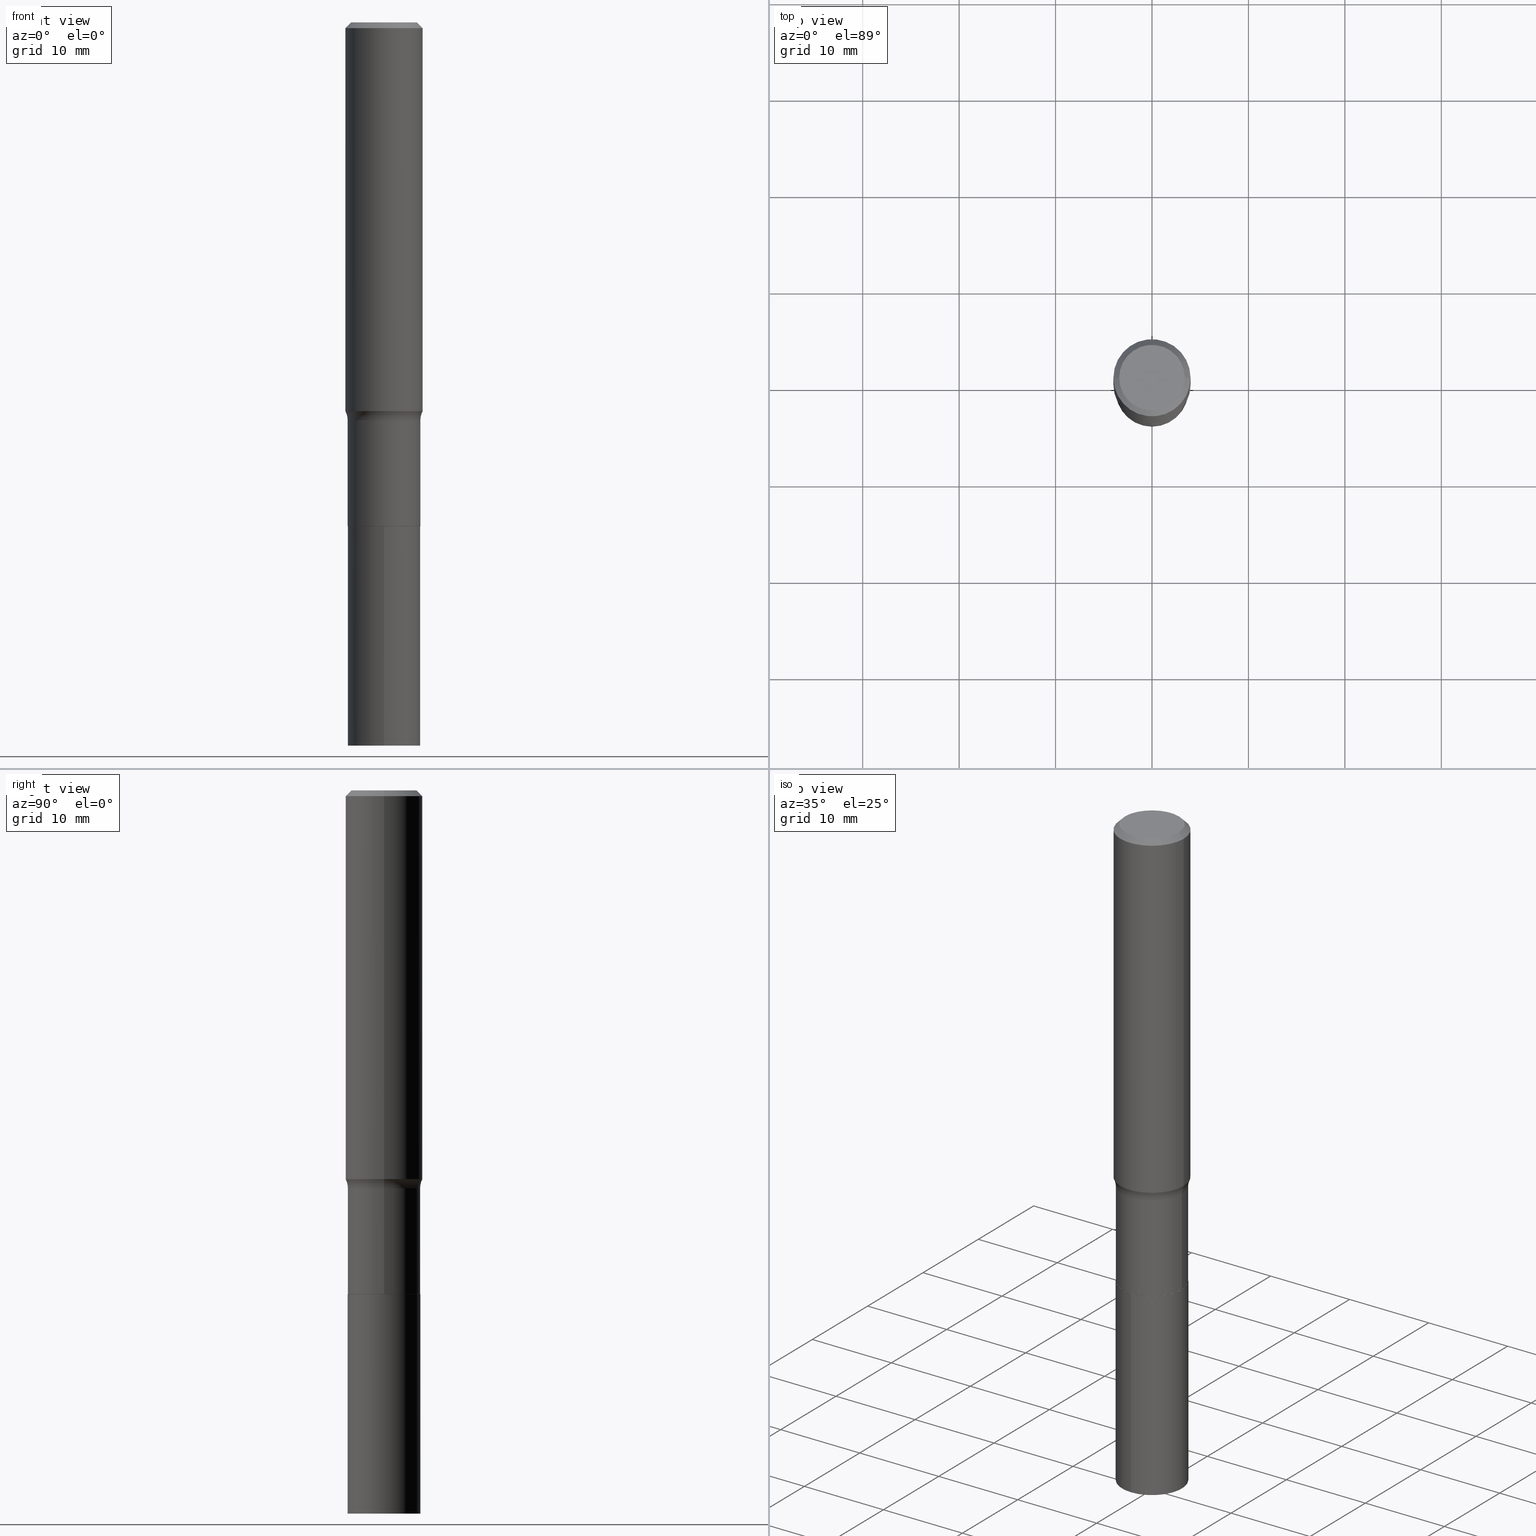
[diagram: canonical four-view strip — front | top / right | iso, engineering-drawing reading convention]
A machine part, canonical four-view strip (front | top / right | iso — engineering-drawing reading convention). The complete STEP part file that produces these views, byte-faithful:
ISO-10303-21;
HEADER;
FILE_DESCRIPTION (( 'STEP AP203' ),
    '1' );
FILE_NAME ('58828.STEP',
    '2024-04-19T14:43:55',
    ( '' ),
    ( '' ),
    'SwSTEP 2.0',
    'SolidWorks 2023',
    '' );
FILE_SCHEMA (( 'CONFIG_CONTROL_DESIGN' ));
ENDSEC;

DATA;
#1 = CALENDAR_DATE ( 2024, 19, 4 ) ;
#2 = CARTESIAN_POINT ( 'NONE',  ( 1.054800691235940897E-15, 0.1484499999999928099, -2.056800000000000406 ) ) ;
#3 = CONICAL_SURFACE ( 'NONE', #241, 0.1575000000000000011, 0.7853981633974447263 ) ;
#4 = CC_DESIGN_APPROVAL ( #251, ( #384 ) ) ;
#5 = CARTESIAN_POINT ( 'NONE',  ( 5.029840240561588648E-29, -7.181278817732581070E-15, -2.056799999999999962 ) ) ;
#6 = EDGE_CURVE ( 'NONE', #150, #395, #160, .T. ) ;
#7 = MANIFOLD_SOLID_BREP ( 'Body-Move/Copy2[2]', #87 ) ;
#8 = ADVANCED_FACE ( 'NONE', ( #331 ), #3, .T. ) ;
#9 = CC_DESIGN_PERSON_AND_ORGANIZATION_ASSIGNMENT ( #467, #151, ( #140 ) ) ;
#10 = CONICAL_SURFACE ( 'NONE', #195, 0.1575000000000000011, 0.7853981633974447263 ) ;
#11 = AXIS2_PLACEMENT_3D ( 'NONE', #5, #435, #82 ) ;
#12 = CARTESIAN_POINT ( 'NONE',  ( 7.221015963033956989E-29, -1.030959501281485395E-14, -2.952800000000000313 ) ) ;
#13 = DIRECTION ( 'NONE',  ( -6.982962677686265922E-15, -1.000000000000000000, 3.491424324868607182E-15 ) ) ;
#14 = ORIENTED_EDGE ( 'NONE', *, *, #148, .T. ) ;
#15 = CARTESIAN_POINT ( 'NONE',  ( 5.029840240561588648E-29, -7.181278817732581070E-15, -2.056799999999999962 ) ) ;
#16 = MANIFOLD_SOLID_BREP ( 'Body-Move/Copy2[1]', #233 ) ;
#17 = EDGE_CURVE ( 'NONE', #18, #180, #223, .T. ) ;
#18 = VERTEX_POINT ( 'NONE', #452 ) ;
#19 = FACE_OUTER_BOUND ( 'NONE', #56, .T. ) ;
#20 = AXIS2_PLACEMENT_3D ( 'NONE', #152, #405, #80 ) ;
#21 = AXIS2_PLACEMENT_3D ( 'NONE', #234, #277, #204 ) ;
#22 = ORIENTED_EDGE ( 'NONE', *, *, #409, .T. ) ;
#23 = ADVANCED_FACE ( 'NONE', ( #209 ), #10, .T. ) ;
#24 = VERTEX_POINT ( 'NONE', #457 ) ;
#25 = CARTESIAN_POINT ( 'NONE',  ( -0.2284499999999999309, -4.047978258838972146E-15, -1.624299999999999633 ) ) ;
#26 = FACE_OUTER_BOUND ( 'NONE', #462, .T. ) ;
#27 = ADVANCED_FACE ( 'NONE', ( #348 ), #287, .T. ) ;
#28 = PRODUCT_DEFINITION_SHAPE ( 'NONE', 'NONE',  #170 ) ;
#29 = ORIENTED_EDGE ( 'NONE', *, *, #229, .T. ) ;
#30 = EDGE_CURVE ( 'NONE', #256, #24, #48, .T. ) ;
#31 = CARTESIAN_POINT ( 'NONE',  ( 7.221015963033956989E-29, -1.030959501281485395E-14, -2.952800000000000313 ) ) ;
#32 = DIRECTION ( 'NONE',  ( 1.000000000000000000, -6.982962677686267499E-15, 4.876176775795936353E-29 ) ) ;
#33 = DIRECTION ( 'NONE',  ( -0.7071067811866078578, 7.493145998870571886E-15, 0.7071067811864871766 ) ) ;
#34 = AXIS2_PLACEMENT_3D ( 'NONE', #272, #86, #52 ) ;
#35 = VECTOR ( 'NONE', #352, 39.37007874015748143 ) ;
#36 = CARTESIAN_POINT ( 'NONE',  ( 5.029840240561588648E-29, -7.181278817732581070E-15, -2.056799999999999962 ) ) ;
#37 = CARTESIAN_POINT ( 'NONE',  ( 5.029840240561588648E-29, -7.181278817732581070E-15, -2.056799999999999962 ) ) ;
#38 = ORIENTED_EDGE ( 'NONE', *, *, #129, .T. ) ;
#39 = PERSON_AND_ORGANIZATION ( #159, #49 ) ;
#40 = CIRCLE ( 'NONE', #70, 0.1479499999999999982 ) ;
#41 = EDGE_LOOP ( 'NONE', ( #447, #347 ) ) ;
#42 = APPROVAL_ROLE ( '' ) ;
#43 = EDGE_CURVE ( 'NONE', #150, #18, #98, .T. ) ;
#44 = CALENDAR_DATE ( 2024, 19, 4 ) ;
#45 = DATE_TIME_ROLE ( 'classification_date' ) ;
#46 = AXIS2_PLACEMENT_3D ( 'NONE', #428, #213, #355 ) ;
#47 = DIRECTION ( 'NONE',  ( -2.445468806185136597E-29, 3.491481338843145583E-15, 1.000000000000000000 ) ) ;
#48 = CIRCLE ( 'NONE', #315, 0.1479499999999999982 ) ;
#49 = ORGANIZATION ( 'UNSPECIFIED', 'UNSPECIFIED', '' ) ;
#50 = AXIS2_PLACEMENT_3D ( 'NONE', #115, #215, #414 ) ;
#51 = EDGE_CURVE ( 'NONE', #133, #76, #303, .T. ) ;
#52 = DIRECTION ( 'NONE',  ( 1.000000000000000000, -6.982962677686264344E-15, 0.000000000000000000 ) ) ;
#53 = EDGE_CURVE ( 'NONE', #76, #133, #254, .T. ) ;
#54 = DIRECTION ( 'NONE',  ( -2.445508618830767481E-29, 3.491424324868607182E-15, 1.000000000000000000 ) ) ;
#55 = EDGE_LOOP ( 'NONE', ( #59, #130, #14, #417 ) ) ;
#56 = EDGE_LOOP ( 'NONE', ( #65, #311, #275, #163 ) ) ;
#57 = CARTESIAN_POINT ( 'NONE',  ( -0.1575000000000001954, -4.423060539265832036E-15, -1.587339243784791742 ) ) ;
#58 = CIRCLE ( 'NONE', #89, 0.1484499999999999986 ) ;
#59 = ORIENTED_EDGE ( 'NONE', *, *, #292, .F. ) ;
#60 = UNCERTAINTY_MEASURE_WITH_UNIT (LENGTH_MEASURE( 1.000000000000000082E-05 ), #375, 'distance_accuracy_value', 'NONE');
#61 = FACE_OUTER_BOUND ( 'NONE', #415, .T. ) ;
#62 = DIRECTION ( 'NONE',  ( -2.445468806185136597E-29, 3.491481338843145583E-15, 1.000000000000000000 ) ) ;
#63 = CARTESIAN_POINT ( 'NONE',  ( 0.1479499999999999982, -8.214408145896263959E-15, -2.056799999999999962 ) ) ;
#64 = CC_DESIGN_DATE_AND_TIME_ASSIGNMENT ( #368, #45, ( #140 ) ) ;
#65 = ORIENTED_EDGE ( 'NONE', *, *, #30, .T. ) ;
#66 = CARTESIAN_POINT ( 'NONE',  ( 5.029840240561588648E-29, -7.181278817732581070E-15, -2.056799999999999962 ) ) ;
#67 = CARTESIAN_POINT ( 'NONE',  ( 0.000000000000000000, 0.000000000000000000, 0.000000000000000000 ) ) ;
#68 = DIRECTION ( 'NONE',  ( 2.445468806185136597E-29, -3.491481338843145583E-15, -1.000000000000000000 ) ) ;
#69 = VECTOR ( 'NONE', #227, 39.37007874015748143 ) ;
#70 = AXIS2_PLACEMENT_3D ( 'NONE', #456, #183, #423 ) ;
#71 = ORIENTED_EDGE ( 'NONE', *, *, #337, .T. ) ;
#72 = DIRECTION ( 'NONE',  ( -2.445508618830767481E-29, 3.491424324868607182E-15, 1.000000000000000000 ) ) ;
#73 = ADVANCED_FACE ( 'NONE', ( #26 ), #278, .T. ) ;
#74 = FACE_OUTER_BOUND ( 'NONE', #247, .T. ) ;
#75 = CALENDAR_DATE ( 2024, 19, 4 ) ;
#76 = VERTEX_POINT ( 'NONE', #419 ) ;
#77 = CARTESIAN_POINT ( 'NONE',  ( 5.777420054612423732E-31, -8.248624663016986467E-17, -0.02362500000000015976 ) ) ;
#78 = AXIS2_PLACEMENT_3D ( 'NONE', #418, #307, #168 ) ;
#79 = DATE_AND_TIME ( #75, #284 ) ;
#80 = DIRECTION ( 'NONE',  ( 1.000000000000000000, -6.982962677686266711E-15, 4.876170806578254279E-29 ) ) ;
#81 = COORDINATED_UNIVERSAL_TIME_OFFSET ( 5, 0, .BEHIND. ) ;
#82 = DIRECTION ( 'NONE',  ( 1.000000000000000000, -6.982962677686265133E-15, 0.000000000000000000 ) ) ;
#83 = AXIS2_PLACEMENT_3D ( 'NONE', #387, #62, #102 ) ;
#84 = VECTOR ( 'NONE', #178, 39.37007874015748143 ) ;
#85 = CARTESIAN_POINT ( 'NONE',  ( 5.777420054612423732E-31, -8.248624663016986467E-17, -0.02362500000000015976 ) ) ;
#86 = DIRECTION ( 'NONE',  ( -2.445468806185136597E-29, 3.491481338843145583E-15, 1.000000000000000000 ) ) ;
#87 = CLOSED_SHELL ( 'NONE', ( #214, #23, #73, #220, #27, #273, #125, #90, #8, #309, #339, #335 ) ) ;
#88 = LINE ( 'NONE', #338, #269 ) ;
#89 = AXIS2_PLACEMENT_3D ( 'NONE', #37, #320, #458 ) ;
#90 = ADVANCED_FACE ( 'NONE', ( #244 ), #283, .T. ) ;
#91 = ORIENTED_EDGE ( 'NONE', *, *, #51, .T. ) ;
#92 = ORIENTED_EDGE ( 'NONE', *, *, #322, .T. ) ;
#93 = CARTESIAN_POINT ( 'NONE',  ( 0.1575000000000001954, -6.641981969823579487E-15, -1.587339243784791742 ) ) ;
#94 = DIRECTION ( 'NONE',  ( -2.445468806185136877E-29, 3.491481338843145188E-15, 1.000000000000000000 ) ) ;
#95 = ORIENTED_EDGE ( 'NONE', *, *, #43, .T. ) ;
#96 = EDGE_CURVE ( 'NONE', #340, #165, #127, .T. ) ;
#97 = VERTEX_POINT ( 'NONE', #174 ) ;
#98 = LINE ( 'NONE', #468, #69 ) ;
#99 = DIRECTION ( 'NONE',  ( 0.7071067811866078578, -2.468850131082888544E-15, 0.7071067811864871766 ) ) ;
#100 = AXIS2_PLACEMENT_3D ( 'NONE', #344, #264, #291 ) ;
#101 = ORIENTED_EDGE ( 'NONE', *, *, #51, .F. ) ;
#102 = DIRECTION ( 'NONE',  ( 1.000000000000000000, -6.982962677686262766E-15, 0.000000000000000000 ) ) ;
#103 = VERTEX_POINT ( 'NONE', #421 ) ;
#104 = FACE_OUTER_BOUND ( 'NONE', #118, .T. ) ;
#105 = LINE ( 'NONE', #113, #84 ) ;
#106 = DIRECTION ( 'NONE',  ( 1.000000000000000000, -6.982962677686265133E-15, 0.000000000000000000 ) ) ;
#107 = FACE_OUTER_BOUND ( 'NONE', #346, .T. ) ;
#108 = AXIS2_PLACEMENT_3D ( 'NONE', #406, #157, #297 ) ;
#109 = CALENDAR_DATE ( 2024, 19, 4 ) ;
#110 = AXIS2_PLACEMENT_3D ( 'NONE', #260, #253, #321 ) ;
#111 = ORIENTED_EDGE ( 'NONE', *, *, #129, .F. ) ;
#112 = EDGE_CURVE ( 'NONE', #395, #180, #250, .T. ) ;
#113 = CARTESIAN_POINT ( 'NONE',  ( 0.1575000000000000011, -1.163014681279186162E-15, -0.02362500000000015976 ) ) ;
#114 = APPROVAL_DATE_TIME ( #432, #194 ) ;
#115 = CARTESIAN_POINT ( 'NONE',  ( 0.000000000000000000, 0.000000000000000000, 0.000000000000000000 ) ) ;
#116 = PERSON_AND_ORGANIZATION ( #159, #49 ) ;
#117 = CC_DESIGN_PERSON_AND_ORGANIZATION_ASSIGNMENT ( #359, #120, ( #384 ) ) ;
#118 = EDGE_LOOP ( 'NONE', ( #218, #445, #323, #38 ) ) ;
#119 = APPROVAL_PERSON_ORGANIZATION ( #429, #149, #329 ) ;
#120 = PERSON_AND_ORGANIZATION_ROLE ( 'creator' ) ;
#121 = AXIS2_PLACEMENT_3D ( 'NONE', #246, #162, #388 ) ;
#122 = CC_DESIGN_PERSON_AND_ORGANIZATION_ASSIGNMENT ( #39, #461, ( #170 ) ) ;
#123 = CC_DESIGN_APPROVAL ( #149, ( #170 ) ) ;
#124 = CARTESIAN_POINT ( 'NONE',  ( 0.1484499999999999431, -1.036620809502525896E-15, 7.238684423669065009E-30 ) ) ;
#125 = ADVANCED_FACE ( 'NONE', ( #104 ), #396, .F. ) ;
#126 = DIRECTION ( 'NONE',  ( -2.445468806185136597E-29, 3.491481338843145583E-15, 1.000000000000000000 ) ) ;
#127 = CIRCLE ( 'NONE', #83, 0.1484499999999999709 ) ;
#128 = AXIS2_PLACEMENT_3D ( 'NONE', #398, #72, #265 ) ;
#129 = EDGE_CURVE ( 'NONE', #97, #103, #230, .T. ) ;
#130 = ORIENTED_EDGE ( 'NONE', *, *, #53, .F. ) ;
#131 = CARTESIAN_POINT ( 'NONE',  ( 0.2284499999999999309, -7.266470962400347289E-15, -1.624299999999999633 ) ) ;
#132 = APPLICATION_CONTEXT ( 'configuration controlled 3d designs of mechanical parts and assemblies' ) ;
#133 = VERTEX_POINT ( 'NONE', #371 ) ;
#134 = CYLINDRICAL_SURFACE ( 'NONE', #21, 0.1484499999999999986 ) ;
#135 = DIRECTION ( 'NONE',  ( 1.000000000000000000, -6.982962677686266711E-15, 4.876170806578254279E-29 ) ) ;
#136 = CARTESIAN_POINT ( 'NONE',  ( 0.1479499999999999982, -8.214408145896263959E-15, -2.056799999999999962 ) ) ;
#137 = ADVANCED_BREP_SHAPE_REPRESENTATION ( '58828', ( #16, #7, #50 ), #196 ) ;
#138 = CARTESIAN_POINT ( 'NONE',  ( 0.000000000000000000, 0.000000000000000000, 0.000000000000000000 ) ) ;
#139 = AXIS2_PLACEMENT_3D ( 'NONE', #313, #308, #318 ) ;
#140 = SECURITY_CLASSIFICATION ( '', '', #228 ) ;
#141 = VERTEX_POINT ( 'NONE', #2 ) ;
#142 = DIRECTION ( 'NONE',  ( 2.445468806185136597E-29, -3.491481338843145583E-15, -1.000000000000000000 ) ) ;
#143 = APPROVAL_STATUS ( 'not_yet_approved' ) ;
#144 = EDGE_CURVE ( 'NONE', #383, #440, #443, .T. ) ;
#145 = ORIENTED_EDGE ( 'NONE', *, *, #279, .T. ) ;
#146 = TOROIDAL_SURFACE ( 'NONE', #342, 0.2284499999999999309, 0.07999999999999996003 ) ;
#147 = PERSON_AND_ORGANIZATION ( #159, #49 ) ;
#148 = EDGE_CURVE ( 'NONE', #76, #18, #438, .T. ) ;
#149 = APPROVAL ( #399, 'UNSPECIFIED' ) ;
#150 = VERTEX_POINT ( 'NONE', #57 ) ;
#151 = PERSON_AND_ORGANIZATION_ROLE ( 'classification_officer' ) ;
#152 = CARTESIAN_POINT ( 'NONE',  ( -1.002970424325032604E-46, 1.431975951230895391E-32, 4.101342130344482109E-18 ) ) ;
#153 = DATE_AND_TIME ( #1, #370 ) ;
#154 = DIRECTION ( 'NONE',  ( -2.445508618830767481E-29, 3.491424324868607182E-15, 1.000000000000000000 ) ) ;
#155 = AXIS2_PLACEMENT_3D ( 'NONE', #341, #126, #237 ) ;
#156 = AXIS2_PLACEMENT_3D ( 'NONE', #411, #236, #212 ) ;
#157 = DIRECTION ( 'NONE',  ( -2.445468806185136597E-29, 3.491481338843145583E-15, 1.000000000000000000 ) ) ;
#158 = APPLICATION_CONTEXT ( 'configuration controlled 3d designs of mechanical parts and assemblies' ) ;
#159 = PERSON ( 'UNSPECIFIED', 'UNSPECIFIED', 'UNSPECIFIED', ('UNSPECIFIED'), ('UNSPECIFIED'), ('UNSPECIFIED') ) ;
#160 = CIRCLE ( 'NONE', #46, 0.1575000000000001954 ) ;
#161 = EDGE_CURVE ( 'NONE', #383, #306, #202, .T. ) ;
#162 = DIRECTION ( 'NONE',  ( -2.445468806185136597E-29, 3.491481338843145583E-15, 1.000000000000000000 ) ) ;
#163 = ORIENTED_EDGE ( 'NONE', *, *, #229, .F. ) ;
#164 = CARTESIAN_POINT ( 'NONE',  ( -1.036620809502475803E-15, -0.1484500000000071873, -2.056799999999999073 ) ) ;
#165 = VERTEX_POINT ( 'NONE', #235 ) ;
#166 = ORIENTED_EDGE ( 'NONE', *, *, #362, .T. ) ;
#167 = EDGE_LOOP ( 'NONE', ( #211, #145, #29, #453 ) ) ;
#168 = DIRECTION ( 'NONE',  ( 6.982962677686265922E-15, 1.000000000000000000, -3.491424324868607182E-15 ) ) ;
#169 = DIRECTION ( 'NONE',  ( -1.000000000000000000, 6.982962677686265922E-15, 0.000000000000000000 ) ) ;
#170 = PRODUCT_DEFINITION ( 'UNKNOWN', '', #384, #172 ) ;
#171 = ORIENTED_EDGE ( 'NONE', *, *, #161, .T. ) ;
#172 = DESIGN_CONTEXT ( 'detailed design', #158, 'design' ) ;
#173 = DIRECTION ( 'NONE',  ( -2.445508618830767481E-29, 3.491424324868607182E-15, 1.000000000000000000 ) ) ;
#174 = CARTESIAN_POINT ( 'NONE',  ( 0.1484499999999999431, -6.707833948185445637E-15, -1.624299999999999633 ) ) ;
#175 = DIRECTION ( 'NONE',  ( -2.445508618830767481E-29, 3.491424324868607182E-15, 1.000000000000000000 ) ) ;
#176 = DIRECTION ( 'NONE',  ( -2.445468806185136597E-29, 3.491481338843145583E-15, 1.000000000000000000 ) ) ;
#177 = AXIS2_PLACEMENT_3D ( 'NONE', #12, #154, #381 ) ;
#178 = DIRECTION ( 'NONE',  ( 0.7071067811865450192, -7.319954787623246579E-15, -0.7071067811865500152 ) ) ;
#179 = APPROVAL_PERSON_ORGANIZATION ( #116, #251, #219 ) ;
#180 = VERTEX_POINT ( 'NONE', #199 ) ;
#181 = DIRECTION ( 'NONE',  ( 1.000000000000000000, -6.982962677686267499E-15, 4.876176775795936353E-29 ) ) ;
#182 = LINE ( 'NONE', #222, #294 ) ;
#183 = DIRECTION ( 'NONE',  ( -2.445468806185136597E-29, 3.491481338843145583E-15, 1.000000000000000000 ) ) ;
#184 = LOCAL_TIME ( 10, 43, 55.00000000000000000, #365 ) ;
#185 = ORIENTED_EDGE ( 'NONE', *, *, #43, .F. ) ;
#186 = ORIENTED_EDGE ( 'NONE', *, *, #148, .F. ) ;
#187 = CARTESIAN_POINT ( 'NONE',  ( 5.777420054612423732E-31, -8.248624663016986467E-17, -0.02362500000000015976 ) ) ;
#188 = DATE_AND_TIME ( #44, #444 ) ;
#189 = FACE_OUTER_BOUND ( 'NONE', #167, .T. ) ;
#190 = APPLICATION_PROTOCOL_DEFINITION ( 'international standard', 'config_control_design', 1994, #158 ) ;
#191 = AXIS2_PLACEMENT_3D ( 'NONE', #394, #436, #268 ) ;
#192 = EDGE_CURVE ( 'NONE', #165, #97, #274, .T. ) ;
#193 = EDGE_CURVE ( 'NONE', #103, #97, #430, .T. ) ;
#194 = APPROVAL ( #143, 'UNSPECIFIED' ) ;
#195 = AXIS2_PLACEMENT_3D ( 'NONE', #187, #68, #366 ) ;
#196 =( GEOMETRIC_REPRESENTATION_CONTEXT ( 3 ) GLOBAL_UNCERTAINTY_ASSIGNED_CONTEXT ( ( #60 ) ) GLOBAL_UNIT_ASSIGNED_CONTEXT ( ( #375, #312, #451 ) ) REPRESENTATION_CONTEXT ( 'NONE', 'WORKASPACE' ) );
#197 = CARTESIAN_POINT ( 'NONE',  ( -3.679415026690334004E-30, -2.117741404033615530E-14, -2.952800000000000313 ) ) ;
#198 = DIRECTION ( 'NONE',  ( -6.982962677686265133E-15, -1.000000000000000000, 3.680495781292372402E-15 ) ) ;
#199 = CARTESIAN_POINT ( 'NONE',  ( 0.1575000000000000011, -1.182302868365756877E-15, -0.02362500000000015976 ) ) ;
#200 = ORIENTED_EDGE ( 'NONE', *, *, #372, .T. ) ;
#201 = CARTESIAN_POINT ( 'NONE',  ( -1.036620809502453912E-15, -0.1484500000000102959, -2.952799999999999869 ) ) ;
#202 = LINE ( 'NONE', #164, #281 ) ;
#203 = CIRCLE ( 'NONE', #121, 0.1575000000000001954 ) ;
#204 = DIRECTION ( 'NONE',  ( -6.982962677686265133E-15, -1.000000000000000000, 3.680495781292372402E-15 ) ) ;
#205 = AXIS2_PLACEMENT_3D ( 'NONE', #31, #173, #380 ) ;
#206 = FACE_OUTER_BOUND ( 'NONE', #285, .T. ) ;
#207 = ORIENTED_EDGE ( 'NONE', *, *, #30, .F. ) ;
#208 = LENGTH_MEASURE_WITH_UNIT ( LENGTH_MEASURE( 0.02539999999999999897 ), #243 );
#209 = FACE_OUTER_BOUND ( 'NONE', #460, .T. ) ;
#210 = FACE_OUTER_BOUND ( 'NONE', #41, .T. ) ;
#211 = ORIENTED_EDGE ( 'NONE', *, *, #300, .F. ) ;
#212 = DIRECTION ( 'NONE',  ( 1.000000000000000000, -6.982962677686262766E-15, 0.000000000000000000 ) ) ;
#213 = DIRECTION ( 'NONE',  ( -2.445468806185136597E-29, 3.491481338843145583E-15, 1.000000000000000000 ) ) ;
#214 = ADVANCED_FACE ( 'NONE', ( #19 ), #293, .T. ) ;
#215 = DIRECTION ( 'NONE',  ( 0.000000000000000000, 0.000000000000000000, 1.000000000000000000 ) ) ;
#216 = ORIENTED_EDGE ( 'NONE', *, *, #53, .T. ) ;
#217 = DIRECTION ( 'NONE',  ( -2.445468806185136597E-29, 3.491481338843145583E-15, 1.000000000000000000 ) ) ;
#218 = ORIENTED_EDGE ( 'NONE', *, *, #372, .F. ) ;
#219 = APPROVAL_ROLE ( '' ) ;
#220 = ADVANCED_FACE ( 'NONE', ( #206 ), #146, .F. ) ;
#221 = EDGE_LOOP ( 'NONE', ( #314, #450, #171, #226 ) ) ;
#222 = CARTESIAN_POINT ( 'NONE',  ( -0.1479499999999999982, -6.130030840175512661E-15, -2.056799999999999962 ) ) ;
#223 = CIRCLE ( 'NONE', #100, 0.1575000000000000011 ) ;
#224 = PERSON_AND_ORGANIZATION ( #159, #49 ) ;
#225 = CIRCLE ( 'NONE', #437, 0.1575000000000000011 ) ;
#226 = ORIENTED_EDGE ( 'NONE', *, *, #362, .F. ) ;
#227 = DIRECTION ( 'NONE',  ( -2.445468806185136877E-29, 3.491481338843145188E-15, 1.000000000000000000 ) ) ;
#228 = SECURITY_CLASSIFICATION_LEVEL ( 'unclassified' ) ;
#229 = EDGE_CURVE ( 'NONE', #256, #165, #239, .T. ) ;
#230 = CIRCLE ( 'NONE', #191, 0.1484499999999999431 ) ;
#231 = ORIENTED_EDGE ( 'NONE', *, *, #112, .T. ) ;
#232 = DIRECTION ( 'NONE',  ( 1.000000000000000000, -6.982962677686266711E-15, 4.883557194083112901E-29 ) ) ;
#233 = CLOSED_SHELL ( 'NONE', ( #327, #267, #425, #390 ) ) ;
#234 = CARTESIAN_POINT ( 'NONE',  ( 5.029840240561588648E-29, -7.181278817732581070E-15, -2.056799999999999962 ) ) ;
#235 = CARTESIAN_POINT ( 'NONE',  ( 0.1484499999999999709, -8.216153886565684674E-15, -2.056299999999999795 ) ) ;
#236 = DIRECTION ( 'NONE',  ( -2.445468806185136597E-29, 3.491481338843145583E-15, 1.000000000000000000 ) ) ;
#237 = DIRECTION ( 'NONE',  ( 1.000000000000000000, -6.982962677686265133E-15, 0.000000000000000000 ) ) ;
#238 = DIRECTION ( 'NONE',  ( 1.000000000000000000, -6.982962677686262766E-15, 0.000000000000000000 ) ) ;
#239 = LINE ( 'NONE', #136, #407 ) ;
#240 = ORIENTED_EDGE ( 'NONE', *, *, #296, .T. ) ;
#241 = AXIS2_PLACEMENT_3D ( 'NONE', #77, #142, #169 ) ;
#242 = ORIENTED_EDGE ( 'NONE', *, *, #161, .F. ) ;
#243 =( LENGTH_UNIT ( ) NAMED_UNIT ( * ) SI_UNIT ( $, .METRE. ) );
#244 = FACE_OUTER_BOUND ( 'NONE', #413, .T. ) ;
#245 = AXIS2_PLACEMENT_3D ( 'NONE', #131, #317, #238 ) ;
#246 = CARTESIAN_POINT ( 'NONE',  ( 3.881788605509211766E-29, -5.542165348087991217E-15, -1.587339243784791742 ) ) ;
#247 = EDGE_LOOP ( 'NONE', ( #216, #91 ) ) ;
#248 = EDGE_CURVE ( 'NONE', #395, #150, #203, .T. ) ;
#249 = PLANE ( 'NONE',  #454 ) ;
#250 = LINE ( 'NONE', #286, #324 ) ;
#251 = APPROVAL ( #459, 'UNSPECIFIED' ) ;
#252 = ORIENTED_EDGE ( 'NONE', *, *, #337, .F. ) ;
#253 = DIRECTION ( 'NONE',  ( 2.438088387897960049E-29, -3.491481338843145188E-15, -1.000000000000000000 ) ) ;
#254 = CIRCLE ( 'NONE', #412, 0.1338749999999999940 ) ;
#255 = CARTESIAN_POINT ( 'NONE',  ( -0.1484499999999999431, 1.054800691235868322E-15, -7.302159141483405952E-30 ) ) ;
#256 = VERTEX_POINT ( 'NONE', #63 ) ;
#257 = SHAPE_DEFINITION_REPRESENTATION ( #28, #137 ) ;
#258 = APPLICATION_PROTOCOL_DEFINITION ( 'international standard', 'config_control_design', 1994, #132 ) ;
#259 = CC_DESIGN_PERSON_AND_ORGANIZATION_ASSIGNMENT ( #446, #464, ( #422 ) ) ;
#260 = CARTESIAN_POINT ( 'NONE',  ( -5.014852121625163022E-47, 7.159879756154476955E-33, 2.050671065172241055E-18 ) ) ;
#261 = APPROVAL_DATE_TIME ( #153, #251 ) ;
#262 = APPROVAL_DATE_TIME ( #79, #149 ) ;
#263 = CIRCLE ( 'NONE', #325, 0.1484499999999999986 ) ;
#264 = DIRECTION ( 'NONE',  ( -2.445468806185136597E-29, 3.491481338843145583E-15, 1.000000000000000000 ) ) ;
#265 = DIRECTION ( 'NONE',  ( -6.982962677686265133E-15, -1.000000000000000000, 3.680495781292372402E-15 ) ) ;
#266 = DIMENSIONAL_EXPONENTS ( 1.000000000000000000, 0.000000000000000000, 0.000000000000000000, 0.000000000000000000, 0.000000000000000000, 0.000000000000000000, 0.000000000000000000 ) ;
#267 = ADVANCED_FACE ( 'NONE', ( #210 ), #349, .F. ) ;
#268 = DIRECTION ( 'NONE',  ( 1.000000000000000000, -6.982962677686264344E-15, 0.000000000000000000 ) ) ;
#269 = VECTOR ( 'NONE', #175, 39.37007874015748143 ) ;
#270 = CC_DESIGN_DATE_AND_TIME_ASSIGNMENT ( #188, #433, ( #170 ) ) ;
#271 = DIRECTION ( 'NONE',  ( 1.000000000000000000, -6.982962677686268288E-15, 0.000000000000000000 ) ) ;
#272 = CARTESIAN_POINT ( 'NONE',  ( 3.972174981886516039E-29, -5.671213138682920530E-15, -1.624299999999999633 ) ) ;
#273 = ADVANCED_FACE ( 'NONE', ( #301 ), #439, .T. ) ;
#274 = LINE ( 'NONE', #124, #369 ) ;
#275 = ORIENTED_EDGE ( 'NONE', *, *, #378, .F. ) ;
#276 = ORIENTED_EDGE ( 'NONE', *, *, #17, .F. ) ;
#277 = DIRECTION ( 'NONE',  ( -2.445508618830767481E-29, 3.491424324868607182E-15, 1.000000000000000000 ) ) ;
#278 = CYLINDRICAL_SURFACE ( 'NONE', #373, 0.1575000000000000844 ) ;
#279 = EDGE_CURVE ( 'NONE', #24, #256, #40, .T. ) ;
#280 = ORIENTED_EDGE ( 'NONE', *, *, #292, .T. ) ;
#281 = VECTOR ( 'NONE', #442, 39.37007874015748143 ) ;
#282 = DIRECTION ( 'NONE',  ( 1.000000000000000000, -6.982962677686265922E-15, 4.876176775795935793E-29 ) ) ;
#283 = CYLINDRICAL_SURFACE ( 'NONE', #333, 0.1575000000000000844 ) ;
#284 = LOCAL_TIME ( 10, 43, 55.00000000000000000, #290 ) ;
#285 = EDGE_LOOP ( 'NONE', ( #326, #200, #350, #328 ) ) ;
#286 = CARTESIAN_POINT ( 'NONE',  ( 0.1575000000000000844, -1.099816621735587677E-15, 7.679978421878603638E-30 ) ) ;
#287 = CYLINDRICAL_SURFACE ( 'NONE', #139, 0.1484499999999999431 ) ;
#288 = CARTESIAN_POINT ( 'NONE',  ( -1.036620809502475803E-15, -0.1484500000000071873, -2.056799999999999073 ) ) ;
#289 = PLANE ( 'NONE',  #110 ) ;
#290 = COORDINATED_UNIVERSAL_TIME_OFFSET ( 5, 0, .BEHIND. ) ;
#291 = DIRECTION ( 'NONE',  ( 1.000000000000000000, -6.982962677686268288E-15, 0.000000000000000000 ) ) ;
#292 = EDGE_CURVE ( 'NONE', #133, #180, #105, .T. ) ;
#293 = CONICAL_SURFACE ( 'NONE', #155, 0.1479499999999999982, 0.7853981633975336552 ) ;
#294 = VECTOR ( 'NONE', #33, 39.37007874015748143 ) ;
#295 = PERSON_AND_ORGANIZATION_ROLE ( 'design_supplier' ) ;
#296 = EDGE_CURVE ( 'NONE', #340, #103, #357, .T. ) ;
#297 = DIRECTION ( 'NONE',  ( 1.000000000000000000, -6.982962677686266711E-15, 4.883557194083112901E-29 ) ) ;
#298 = AXIS2_PLACEMENT_3D ( 'NONE', #392, #427, #361 ) ;
#299 = CC_DESIGN_APPROVAL ( #194, ( #140 ) ) ;
#300 = EDGE_CURVE ( 'NONE', #24, #340, #182, .T. ) ;
#301 = FACE_OUTER_BOUND ( 'NONE', #363, .T. ) ;
#302 = ORIENTED_EDGE ( 'NONE', *, *, #378, .T. ) ;
#303 = CIRCLE ( 'NONE', #20, 0.1338749999999999940 ) ;
#304 = ORIENTED_EDGE ( 'NONE', *, *, #192, .T. ) ;
#305 = PLANE ( 'NONE',  #78 ) ;
#306 = VERTEX_POINT ( 'NONE', #288 ) ;
#307 = DIRECTION ( 'NONE',  ( 2.445508618830767201E-29, -3.491424324868607182E-15, -1.000000000000000000 ) ) ;
#308 = DIRECTION ( 'NONE',  ( -2.445468806185136597E-29, 3.491481338843145583E-15, 1.000000000000000000 ) ) ;
#309 = ADVANCED_FACE ( 'NONE', ( #74 ), #289, .F. ) ;
#310 = DIRECTION ( 'NONE',  ( -0.7071067811865450192, 2.468850131082230634E-15, -0.7071067811865500152 ) ) ;
#311 = ORIENTED_EDGE ( 'NONE', *, *, #300, .T. ) ;
#312 =( NAMED_UNIT ( * ) PLANE_ANGLE_UNIT ( ) SI_UNIT ( $, .RADIAN. ) );
#313 = CARTESIAN_POINT ( 'NONE',  ( 0.000000000000000000, 0.000000000000000000, 0.000000000000000000 ) ) ;
#314 = ORIENTED_EDGE ( 'NONE', *, *, #409, .F. ) ;
#315 = AXIS2_PLACEMENT_3D ( 'NONE', #36, #351, #106 ) ;
#316 = CIRCLE ( 'NONE', #205, 0.1484499999999999986 ) ;
#317 = DIRECTION ( 'NONE',  ( -6.982962677686266711E-15, -1.000000000000000000, 3.491481338843145583E-15 ) ) ;
#318 = DIRECTION ( 'NONE',  ( 1.000000000000000000, -6.982962677686266711E-15, 4.876176775795936353E-29 ) ) ;
#319 = ORIENTED_EDGE ( 'NONE', *, *, #248, .T. ) ;
#320 = DIRECTION ( 'NONE',  ( -2.445508618830767481E-29, 3.491424324868607182E-15, 1.000000000000000000 ) ) ;
#321 = DIRECTION ( 'NONE',  ( -1.000000000000000000, 6.982962677686265922E-15, -4.876176775795935793E-29 ) ) ;
#322 = EDGE_CURVE ( 'NONE', #306, #141, #58, .T. ) ;
#323 = ORIENTED_EDGE ( 'NONE', *, *, #356, .T. ) ;
#324 = VECTOR ( 'NONE', #426, 39.37007874015748143 ) ;
#325 = AXIS2_PLACEMENT_3D ( 'NONE', #15, #54, #198 ) ;
#326 = ORIENTED_EDGE ( 'NONE', *, *, #6, .F. ) ;
#327 = ADVANCED_FACE ( 'NONE', ( #107 ), #401, .T. ) ;
#328 = ORIENTED_EDGE ( 'NONE', *, *, #356, .F. ) ;
#329 = APPROVAL_ROLE ( '' ) ;
#330 = ORIENTED_EDGE ( 'NONE', *, *, #96, .T. ) ;
#331 = FACE_OUTER_BOUND ( 'NONE', #55, .T. ) ;
#332 = COORDINATED_UNIVERSAL_TIME_OFFSET ( 5, 0, .BEHIND. ) ;
#333 = AXIS2_PLACEMENT_3D ( 'NONE', #67, #176, #181 ) ;
#334 = AXIS2_PLACEMENT_3D ( 'NONE', #25, #343, #416 ) ;
#335 = ADVANCED_FACE ( 'NONE', ( #189 ), #463, .T. ) ;
#336 = DIRECTION ( 'NONE',  ( -2.445508618830767201E-29, 3.491424324868607182E-15, 1.000000000000000000 ) ) ;
#337 = EDGE_CURVE ( 'NONE', #180, #18, #225, .T. ) ;
#338 = CARTESIAN_POINT ( 'NONE',  ( 1.054800691235918809E-15, 0.1484499999999928099, -2.056800000000000406 ) ) ;
#339 = ADVANCED_FACE ( 'NONE', ( #420 ), #249, .F. ) ;
#340 = VERTEX_POINT ( 'NONE', #386 ) ;
#341 = CARTESIAN_POINT ( 'NONE',  ( 5.029840240561588648E-29, -7.181278817732581070E-15, -2.056799999999999962 ) ) ;
#342 = AXIS2_PLACEMENT_3D ( 'NONE', #345, #449, #232 ) ;
#343 = DIRECTION ( 'NONE',  ( 7.105427357601001859E-15, 1.000000000000000000, -3.491481338843145583E-15 ) ) ;
#344 = CARTESIAN_POINT ( 'NONE',  ( 5.777420054612423732E-31, -8.248624663016986467E-17, -0.02362500000000015976 ) ) ;
#345 = CARTESIAN_POINT ( 'NONE',  ( 3.972174981886516039E-29, -5.671213138682920530E-15, -1.624299999999999633 ) ) ;
#346 = EDGE_LOOP ( 'NONE', ( #360, #22, #385, #242 ) ) ;
#347 = ORIENTED_EDGE ( 'NONE', *, *, #400, .F. ) ;
#348 = FACE_OUTER_BOUND ( 'NONE', #379, .T. ) ;
#349 = PLANE ( 'NONE',  #382 ) ;
#350 = ORIENTED_EDGE ( 'NONE', *, *, #193, .T. ) ;
#351 = DIRECTION ( 'NONE',  ( -2.445468806185136597E-29, 3.491481338843145583E-15, 1.000000000000000000 ) ) ;
#352 = DIRECTION ( 'NONE',  ( -2.445468806185136877E-29, 3.491481338843145188E-15, 1.000000000000000000 ) ) ;
#353 = MECHANICAL_CONTEXT ( 'NONE', #132, 'mechanical' ) ;
#354 = CIRCLE ( 'NONE', #156, 0.1484499999999999709 ) ;
#355 = DIRECTION ( 'NONE',  ( 1.000000000000000000, -6.982962677686265922E-15, 0.000000000000000000 ) ) ;
#356 = EDGE_CURVE ( 'NONE', #395, #97, #404, .T. ) ;
#357 = LINE ( 'NONE', #255, #35 ) ;
#358 = PRODUCT_RELATED_PRODUCT_CATEGORY ( 'detail', '', ( #422 ) ) ;
#359 = PERSON_AND_ORGANIZATION ( #159, #49 ) ;
#360 = ORIENTED_EDGE ( 'NONE', *, *, #144, .T. ) ;
#361 = DIRECTION ( 'NONE',  ( 1.000000000000000000, -6.982962677686266711E-15, 4.876176775795936353E-29 ) ) ;
#362 = EDGE_CURVE ( 'NONE', #141, #306, #263, .T. ) ;
#363 = EDGE_LOOP ( 'NONE', ( #465, #330, #304, #393 ) ) ;
#364 = CC_DESIGN_SECURITY_CLASSIFICATION ( #140, ( #384 ) ) ;
#365 = COORDINATED_UNIVERSAL_TIME_OFFSET ( 5, 0, .BEHIND. ) ;
#366 = DIRECTION ( 'NONE',  ( -1.000000000000000000, 6.982962677686265922E-15, 0.000000000000000000 ) ) ;
#367 = COORDINATED_UNIVERSAL_TIME_OFFSET ( 5, 0, .BEHIND. ) ;
#368 = DATE_AND_TIME ( #402, #431 ) ;
#369 = VECTOR ( 'NONE', #94, 39.37007874015748143 ) ;
#370 = LOCAL_TIME ( 10, 43, 55.00000000000000000, #332 ) ;
#371 = CARTESIAN_POINT ( 'NONE',  ( 0.1338749999999999940, -1.040731925365424925E-15, 4.101342130351390035E-18 ) ) ;
#372 = EDGE_CURVE ( 'NONE', #150, #103, #374, .T. ) ;
#373 = AXIS2_PLACEMENT_3D ( 'NONE', #138, #391, #32 ) ;
#374 = CIRCLE ( 'NONE', #334, 0.07999999999999996003 ) ;
#375 =( CONVERSION_BASED_UNIT ( 'INCH', #208 ) LENGTH_UNIT ( ) NAMED_UNIT ( #266 ) );
#376 = ORIENTED_EDGE ( 'NONE', *, *, #6, .T. ) ;
#377 = CARTESIAN_POINT ( 'NONE',  ( 1.054800691235929853E-15, 0.1484499999999896735, -2.952800000000000757 ) ) ;
#378 = EDGE_CURVE ( 'NONE', #165, #340, #354, .T. ) ;
#379 = EDGE_LOOP ( 'NONE', ( #302, #240, #111, #424 ) ) ;
#380 = DIRECTION ( 'NONE',  ( -6.982962677686265133E-15, -1.000000000000000000, 3.680495781292372402E-15 ) ) ;
#381 = DIRECTION ( 'NONE',  ( -6.982962677686265133E-15, -1.000000000000000000, 3.680495781292372402E-15 ) ) ;
#382 = AXIS2_PLACEMENT_3D ( 'NONE', #197, #336, #13 ) ;
#383 = VERTEX_POINT ( 'NONE', #201 ) ;
#384 = PRODUCT_DEFINITION_FORMATION_WITH_SPECIFIED_SOURCE ( 'ANY', '', #422, .NOT_KNOWN. ) ;
#385 = ORIENTED_EDGE ( 'NONE', *, *, #322, .F. ) ;
#386 = CARTESIAN_POINT ( 'NONE',  ( -0.1484499999999999986, -5.370572416637170741E-15, -2.056299999999999795 ) ) ;
#387 = CARTESIAN_POINT ( 'NONE',  ( 5.028617506158495847E-29, -7.179533077063158778E-15, -2.056299999999999795 ) ) ;
#388 = DIRECTION ( 'NONE',  ( 1.000000000000000000, -6.982962677686265922E-15, 0.000000000000000000 ) ) ;
#389 = EDGE_LOOP ( 'NONE', ( #207, #403 ) ) ;
#390 = ADVANCED_FACE ( 'NONE', ( #61 ), #305, .F. ) ;
#391 = DIRECTION ( 'NONE',  ( -2.445468806185136597E-29, 3.491481338843145583E-15, 1.000000000000000000 ) ) ;
#392 = CARTESIAN_POINT ( 'NONE',  ( 0.000000000000000000, 0.000000000000000000, 0.000000000000000000 ) ) ;
#393 = ORIENTED_EDGE ( 'NONE', *, *, #193, .F. ) ;
#394 = CARTESIAN_POINT ( 'NONE',  ( 3.972174981886516039E-29, -5.671213138682920530E-15, -1.624299999999999633 ) ) ;
#395 = VERTEX_POINT ( 'NONE', #93 ) ;
#396 = TOROIDAL_SURFACE ( 'NONE', #108, 0.2284499999999999309, 0.07999999999999996003 ) ;
#397 = CC_DESIGN_PERSON_AND_ORGANIZATION_ASSIGNMENT ( #147, #295, ( #384 ) ) ;
#398 = CARTESIAN_POINT ( 'NONE',  ( 5.029840240561588648E-29, -7.181278817732581070E-15, -2.056799999999999962 ) ) ;
#399 = APPROVAL_STATUS ( 'not_yet_approved' ) ;
#400 = EDGE_CURVE ( 'NONE', #440, #383, #316, .T. ) ;
#401 = CYLINDRICAL_SURFACE ( 'NONE', #128, 0.1484499999999999986 ) ;
#402 = CALENDAR_DATE ( 2024, 19, 4 ) ;
#403 = ORIENTED_EDGE ( 'NONE', *, *, #279, .F. ) ;
#404 = CIRCLE ( 'NONE', #245, 0.07999999999999996003 ) ;
#405 = DIRECTION ( 'NONE',  ( -2.445468806185136597E-29, 3.491481338843145583E-15, 1.000000000000000000 ) ) ;
#406 = CARTESIAN_POINT ( 'NONE',  ( 3.972174981886516039E-29, -5.671213138682920530E-15, -1.624299999999999633 ) ) ;
#407 = VECTOR ( 'NONE', #99, 39.37007874015748143 ) ;
#408 = APPROVAL_PERSON_ORGANIZATION ( #224, #194, #42 ) ;
#409 = EDGE_CURVE ( 'NONE', #440, #141, #88, .T. ) ;
#410 = CARTESIAN_POINT ( 'NONE',  ( -0.1575000000000000011, 1.017330375105417098E-15, -0.02362500000000015976 ) ) ;
#411 = CARTESIAN_POINT ( 'NONE',  ( 5.028617506158495847E-29, -7.179533077063158778E-15, -2.056299999999999795 ) ) ;
#412 = AXIS2_PLACEMENT_3D ( 'NONE', #455, #217, #135 ) ;
#413 = EDGE_LOOP ( 'NONE', ( #185, #376, #231, #276 ) ) ;
#414 = DIRECTION ( 'NONE',  ( 1.000000000000000000, 0.000000000000000000, 0.000000000000000000 ) ) ;
#415 = EDGE_LOOP ( 'NONE', ( #92, #166 ) ) ;
#416 = DIRECTION ( 'NONE',  ( -1.000000000000000000, 7.105427357601001859E-15, 0.000000000000000000 ) ) ;
#417 = ORIENTED_EDGE ( 'NONE', *, *, #17, .T. ) ;
#418 = CARTESIAN_POINT ( 'NONE',  ( 5.029840240561588648E-29, -7.181278817732581070E-15, -2.056799999999999962 ) ) ;
#419 = CARTESIAN_POINT ( 'NONE',  ( -0.1338749999999999940, 9.760872517903331886E-16, 4.101342130337800673E-18 ) ) ;
#420 = FACE_OUTER_BOUND ( 'NONE', #389, .T. ) ;
#421 = CARTESIAN_POINT ( 'NONE',  ( -0.1484499999999999431, -5.370572416637171529E-15, -1.624299999999999633 ) ) ;
#422 = PRODUCT ( '58828', '58828', '', ( #353 ) ) ;
#423 = DIRECTION ( 'NONE',  ( 1.000000000000000000, -6.982962677686265133E-15, 0.000000000000000000 ) ) ;
#424 = ORIENTED_EDGE ( 'NONE', *, *, #192, .F. ) ;
#425 = ADVANCED_FACE ( 'NONE', ( #441 ), #134, .T. ) ;
#426 = DIRECTION ( 'NONE',  ( -2.445468806185136877E-29, 3.491481338843145188E-15, 1.000000000000000000 ) ) ;
#427 = DIRECTION ( 'NONE',  ( -2.445468806185136597E-29, 3.491481338843145583E-15, 1.000000000000000000 ) ) ;
#428 = CARTESIAN_POINT ( 'NONE',  ( 3.881788605509211766E-29, -5.542165348087991217E-15, -1.587339243784791742 ) ) ;
#429 = PERSON_AND_ORGANIZATION ( #159, #49 ) ;
#430 = CIRCLE ( 'NONE', #34, 0.1484499999999999431 ) ;
#431 = LOCAL_TIME ( 10, 43, 55.00000000000000000, #81 ) ;
#432 = DATE_AND_TIME ( #109, #184 ) ;
#433 = DATE_TIME_ROLE ( 'creation_date' ) ;
#434 = VECTOR ( 'NONE', #310, 39.37007874015748143 ) ;
#435 = DIRECTION ( 'NONE',  ( -2.445468806185136597E-29, 3.491481338843145583E-15, 1.000000000000000000 ) ) ;
#436 = DIRECTION ( 'NONE',  ( -2.445468806185136597E-29, 3.491481338843145583E-15, 1.000000000000000000 ) ) ;
#437 = AXIS2_PLACEMENT_3D ( 'NONE', #85, #47, #271 ) ;
#438 = LINE ( 'NONE', #410, #434 ) ;
#439 = CYLINDRICAL_SURFACE ( 'NONE', #298, 0.1484499999999999431 ) ;
#440 = VERTEX_POINT ( 'NONE', #377 ) ;
#441 = FACE_OUTER_BOUND ( 'NONE', #221, .T. ) ;
#442 = DIRECTION ( 'NONE',  ( -2.445508618830767481E-29, 3.491424324868607182E-15, 1.000000000000000000 ) ) ;
#443 = CIRCLE ( 'NONE', #177, 0.1484499999999999986 ) ;
#444 = LOCAL_TIME ( 10, 43, 55.00000000000000000, #367 ) ;
#445 = ORIENTED_EDGE ( 'NONE', *, *, #248, .F. ) ;
#446 = PERSON_AND_ORGANIZATION ( #159, #49 ) ;
#447 = ORIENTED_EDGE ( 'NONE', *, *, #144, .F. ) ;
#448 = DIRECTION ( 'NONE',  ( -2.438088387897960049E-29, 3.491481338843145188E-15, 1.000000000000000000 ) ) ;
#449 = DIRECTION ( 'NONE',  ( -2.445468806185136597E-29, 3.491481338843145583E-15, 1.000000000000000000 ) ) ;
#450 = ORIENTED_EDGE ( 'NONE', *, *, #400, .T. ) ;
#451 =( NAMED_UNIT ( * ) SI_UNIT ( $, .STERADIAN. ) SOLID_ANGLE_UNIT ( ) );
#452 = CARTESIAN_POINT ( 'NONE',  ( -0.1575000000000000011, -1.693220988536922309E-15, -0.02362500000000015976 ) ) ;
#453 = ORIENTED_EDGE ( 'NONE', *, *, #96, .F. ) ;
#454 = AXIS2_PLACEMENT_3D ( 'NONE', #66, #448, #282 ) ;
#455 = CARTESIAN_POINT ( 'NONE',  ( -1.002970424325032604E-46, 1.431975951230895391E-32, 4.101342130344482109E-18 ) ) ;
#456 = CARTESIAN_POINT ( 'NONE',  ( 5.029840240561588648E-29, -7.181278817732581070E-15, -2.056799999999999962 ) ) ;
#457 = CARTESIAN_POINT ( 'NONE',  ( -0.1479499999999999982, -6.127381613001401460E-15, -2.056799999999999962 ) ) ;
#458 = DIRECTION ( 'NONE',  ( -6.982962677686265133E-15, -1.000000000000000000, 3.680495781292372402E-15 ) ) ;
#459 = APPROVAL_STATUS ( 'not_yet_approved' ) ;
#460 = EDGE_LOOP ( 'NONE', ( #101, #280, #71, #186 ) ) ;
#461 = PERSON_AND_ORGANIZATION_ROLE ( 'creator' ) ;
#462 = EDGE_LOOP ( 'NONE', ( #319, #95, #252, #466 ) ) ;
#463 = CONICAL_SURFACE ( 'NONE', #11, 0.1479499999999999982, 0.7853981633975336552 ) ;
#464 = PERSON_AND_ORGANIZATION_ROLE ( 'design_owner' ) ;
#465 = ORIENTED_EDGE ( 'NONE', *, *, #296, .F. ) ;
#466 = ORIENTED_EDGE ( 'NONE', *, *, #112, .F. ) ;
#467 = PERSON_AND_ORGANIZATION ( #159, #49 ) ;
#468 = CARTESIAN_POINT ( 'NONE',  ( -0.1575000000000000844, 1.119104808822158392E-15, -7.747322767151481189E-30 ) ) ;
ENDSEC;
END-ISO-10303-21;
